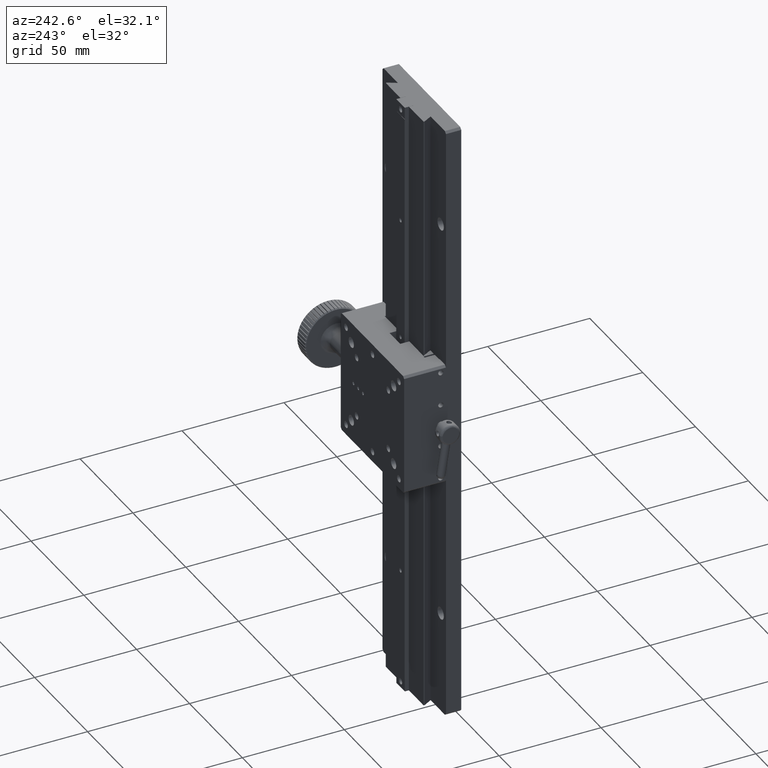
[diagram: clean part render]
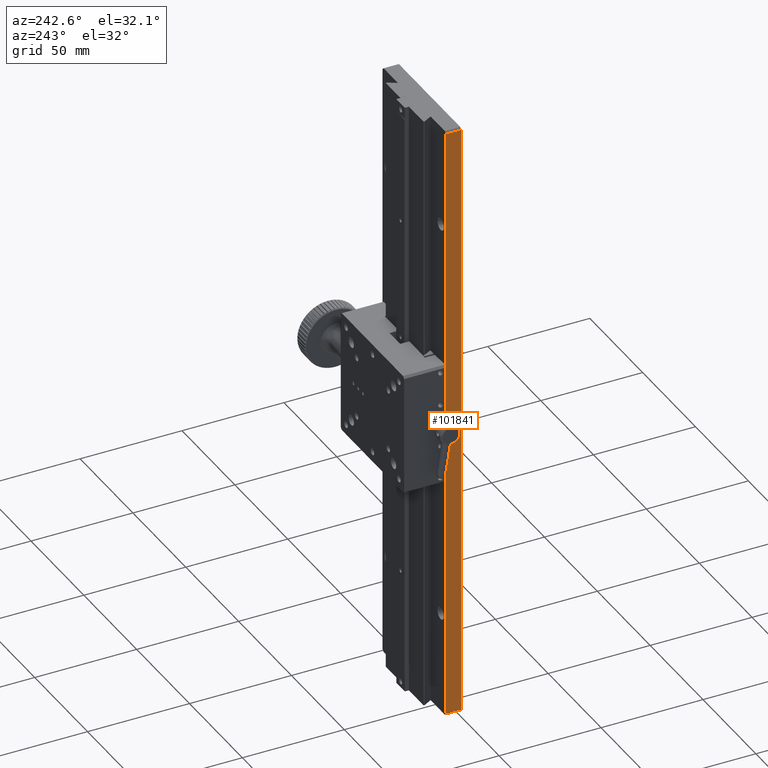
[diagram: same view with one face highlighted and labeled with its STEP entity id]
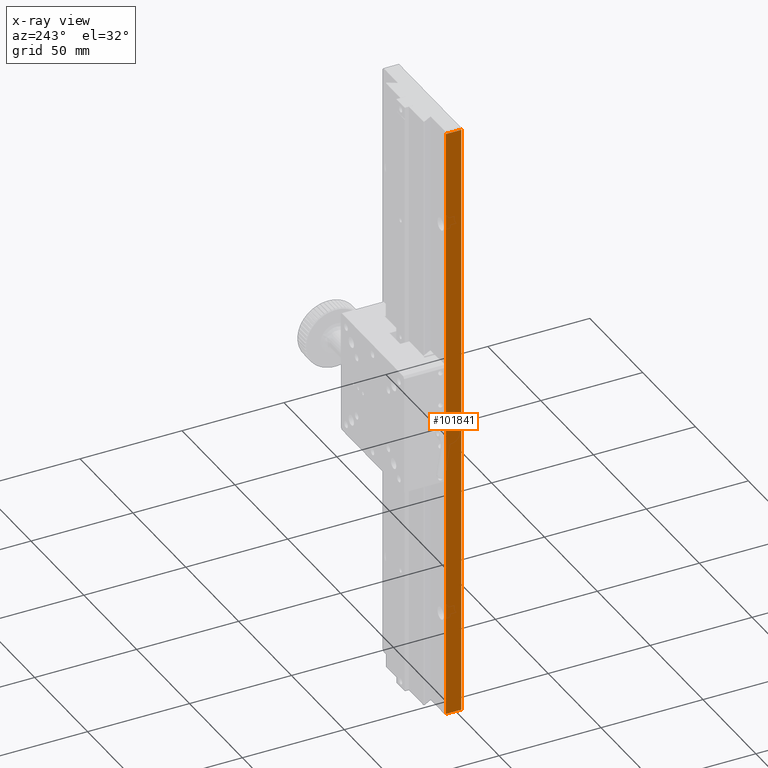
[diagram: x-ray of the same camera — body ghosted, the highlighted face saturated]
A machine part, auxiliary view. The second image highlights one B-rep face of the part: STEP entity #101841.
The next image is the same camera in x-ray: the body ghosted, the highlighted face saturated — about 0% of this face is hidden behind the body in this view.
In plain terms, the highlighted planar face has unit normal (1, 0, -0).
Its self-contained STEP definition (entity closure, byte-faithful):
#3970 = ORIENTED_EDGE ( 'NONE', *, *, #9809, .T. ) ;
#5498 = CARTESIAN_POINT ( 'NONE',  ( 82.90822098279063823, 59.02535012998631458, -84.89519372890087823 ) ) ;
#5998 = VERTEX_POINT ( 'NONE', #63259 ) ;
#9350 = PLANE ( 'NONE',  #47272 ) ;
#9809 = EDGE_CURVE ( 'NONE', #5998, #71168, #43016, .T. ) ;
#10030 = CARTESIAN_POINT ( 'NONE',  ( 82.90822098279060981, 59.02535012998630748, 214.1048062710991644 ) ) ;
#12866 = ORIENTED_EDGE ( 'NONE', *, *, #42902, .F. ) ;
#15961 = EDGE_CURVE ( 'NONE', #74814, #71168, #58544, .T. ) ;
#20540 = EDGE_CURVE ( 'NONE', #94627, #74814, #80971, .T. ) ;
#32555 = LINE ( 'NONE', #80194, #36186 ) ;
#36186 = VECTOR ( 'NONE', #38777, 1000.000000000000000 ) ;
#38777 = DIRECTION ( 'NONE',  ( -6.982962677686266711E-15, 1.000000000000000000, 0.000000000000000000 ) ) ;
#40578 = DIRECTION ( 'NONE',  ( 0.000000000000000000, 0.000000000000000000, 1.000000000000000000 ) ) ;
#42902 = EDGE_CURVE ( 'NONE', #5998, #94627, #32555, .T. ) ;
#43016 = LINE ( 'NONE', #59052, #67590 ) ;
#43021 = CARTESIAN_POINT ( 'NONE',  ( 82.90822098279065244, 51.52535012998631458, 213.1048062710991644 ) ) ;
#44049 = DIRECTION ( 'NONE',  ( 0.000000000000000000, 0.000000000000000000, 1.000000000000000000 ) ) ;
#44352 = EDGE_LOOP ( 'NONE', ( #12866, #3970, #92006, #71219 ) ) ;
#47272 = AXIS2_PLACEMENT_3D ( 'NONE', #90077, #72510, #95812 ) ;
#58544 = LINE ( 'NONE', #43021, #67528 ) ;
#59052 = CARTESIAN_POINT ( 'NONE',  ( 82.90822098279065244, 51.52535012998631458, 214.1048062710991644 ) ) ;
#59056 = DIRECTION ( 'NONE',  ( 6.982962677686266711E-15, -1.000000000000000000, -0.000000000000000000 ) ) ;
#63259 = CARTESIAN_POINT ( 'NONE',  ( 82.90822098279065244, 51.52535012998632169, -84.89519372890083559 ) ) ;
#67528 = VECTOR ( 'NONE', #59056, 1000.000000000000000 ) ;
#67590 = VECTOR ( 'NONE', #44049, 1000.000000000000000 ) ;
#71168 = VERTEX_POINT ( 'NONE', #76470 ) ;
#71219 = ORIENTED_EDGE ( 'NONE', *, *, #20540, .F. ) ;
#72510 = DIRECTION ( 'NONE',  ( 1.000000000000000000, 6.982962677686266711E-15, -0.000000000000000000 ) ) ;
#74814 = VERTEX_POINT ( 'NONE', #92499 ) ;
#76470 = CARTESIAN_POINT ( 'NONE',  ( 82.90822098279065244, 51.52535012998632169, 213.1048062710991644 ) ) ;
#80194 = CARTESIAN_POINT ( 'NONE',  ( 82.90822098279065244, 51.52535012998631458, -84.89519372890083559 ) ) ;
#80291 = FACE_OUTER_BOUND ( 'NONE', #44352, .T. ) ;
#80971 = LINE ( 'NONE', #10030, #100342 ) ;
#90077 = CARTESIAN_POINT ( 'NONE',  ( 82.90822098279065244, 51.52535012998631458, 214.1048062710991644 ) ) ;
#92006 = ORIENTED_EDGE ( 'NONE', *, *, #15961, .F. ) ;
#92499 = CARTESIAN_POINT ( 'NONE',  ( 82.90822098279063823, 59.02535012998631458, 213.1048062710991644 ) ) ;
#94627 = VERTEX_POINT ( 'NONE', #5498 ) ;
#95812 = DIRECTION ( 'NONE',  ( -6.982962677686266711E-15, 1.000000000000000000, 0.000000000000000000 ) ) ;
#100342 = VECTOR ( 'NONE', #40578, 1000.000000000000000 ) ;
#101841 = ADVANCED_FACE ( 'NONE', ( #80291 ), #9350, .F. ) ;